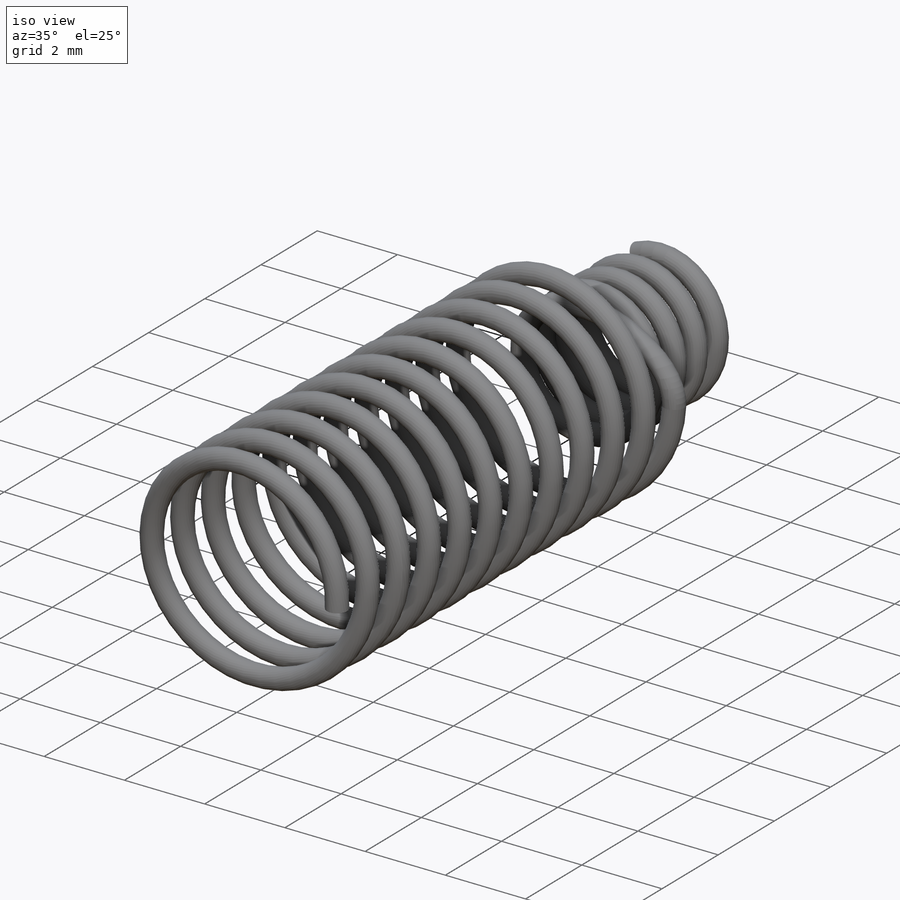
[diagram: iso view]
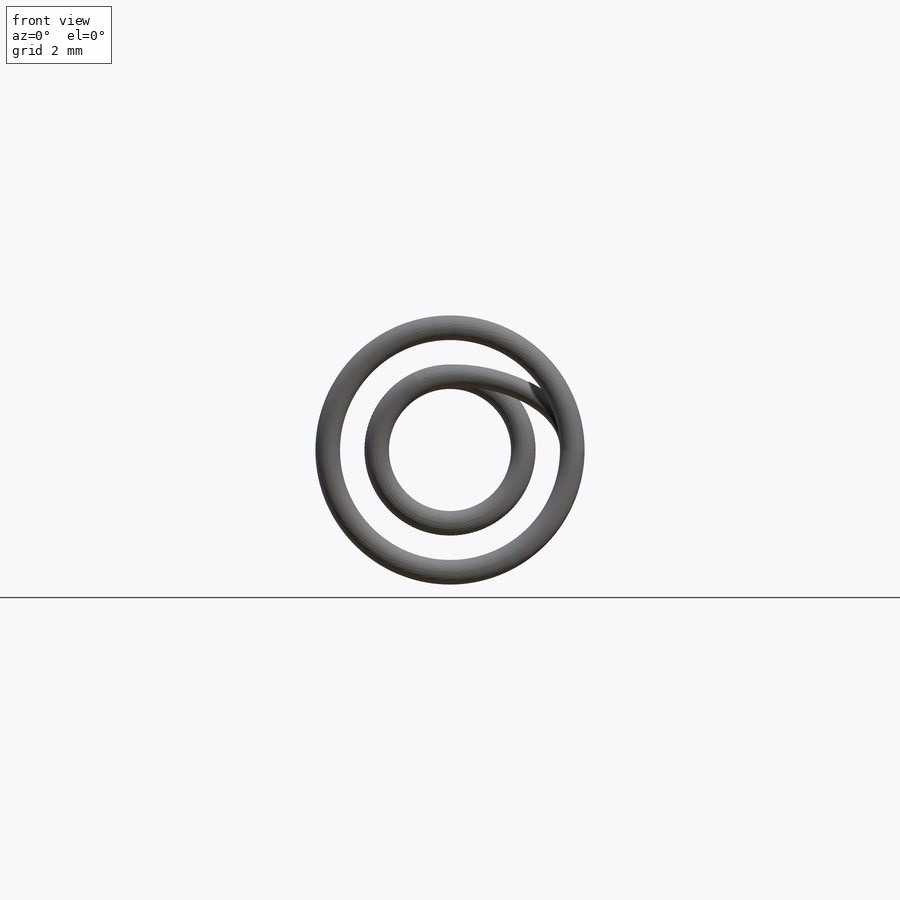
[diagram: front view]
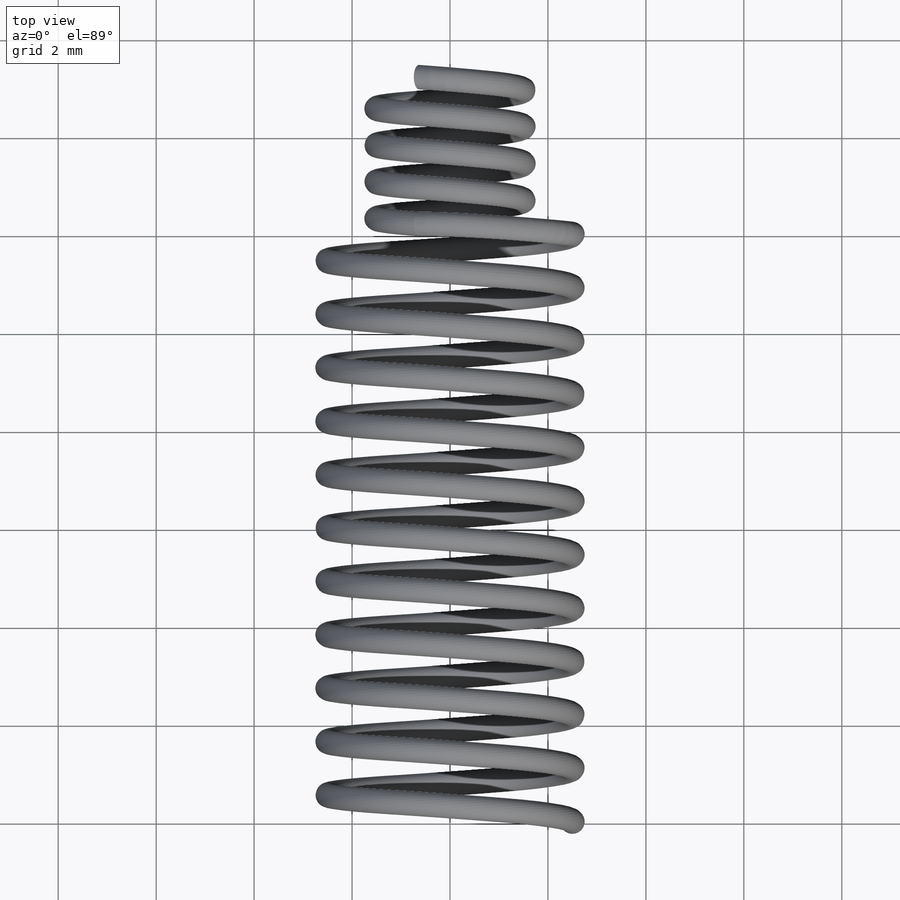
[diagram: top view]
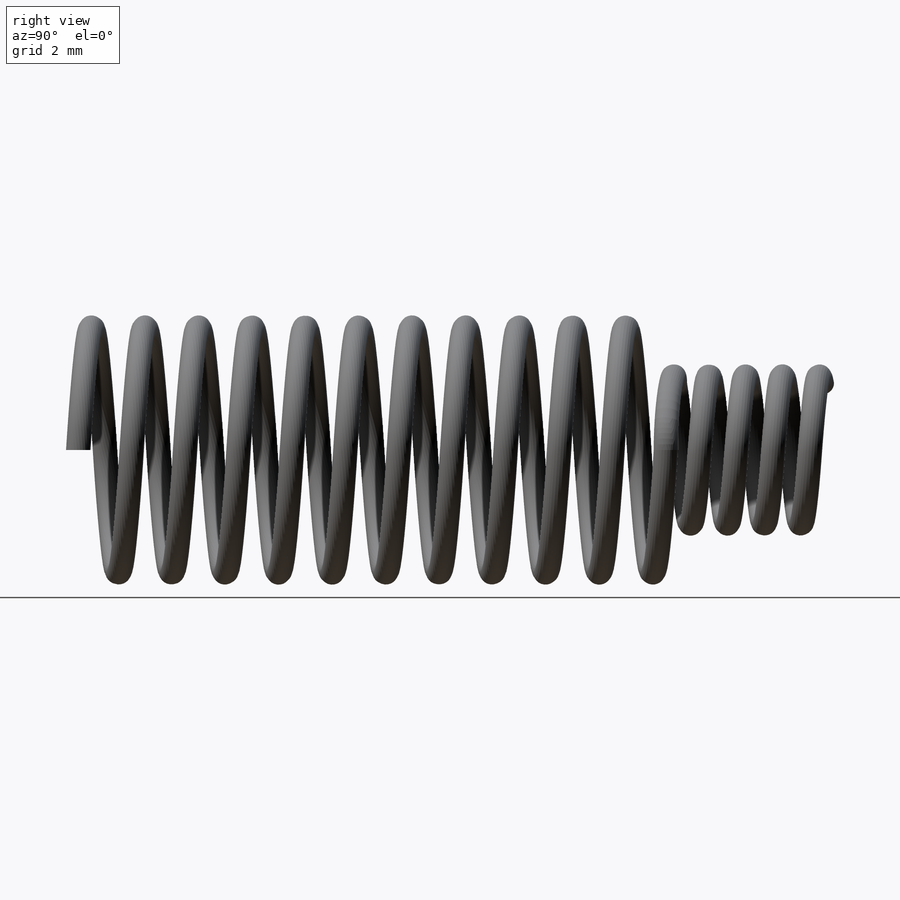
[diagram: right view]
SOLIDWORKS PART (.sldprt)
format: sldprt  version: not decoded by parser v0  size: 772,608 bytes
history: native  units: mm
features: sketch x6, plane x3, sweep x2, material x1, helix x1 (+12 scaffold rows collapsed)
feature tree (25):
  scaffold x12  (default folders/planes/origin — collapsed)
  material  "Matériau <non spécifié>"
  plane  "Face"
  plane  "Dessus"
  plane  "Droite"
  sketch  "Esquisse1"  dims[D1=5.0mm D2=6.0mm]
  helix  "Hélice/Spirale2"  Pitch=12mm
  sketch  "Esquisse2"  dims[D1=0.5mm]
  sweep  "Balayage1"
  sketch  "Esquisse3"  dims[D1=0.5mm D2=1.5mm]
  sketch  "Esquisse4"  dims[D1=3.0mm Hélice/Spirale3=0.0 D3=3.0mm D4=0.75mm D5=~229.183118deg D7=~2007.12864mm]
  sweep  "Balayage2"
  sketch  "Esquisse2<2>"
  sketch  "Esquisse5"  dims[D1=22.25mm]
decode coverage: 6 of 9 modeling features carry decoded parameters
note: ~ marks probable driven/reference dimensions
note: suppression state not decoded; provenance and decode notes live in map.json
